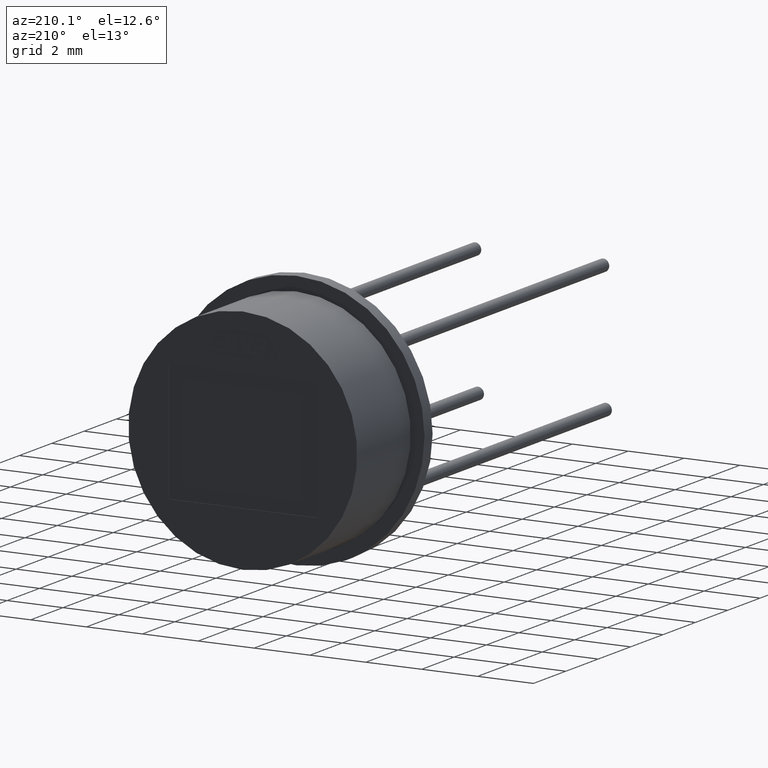
[diagram: clean part render]
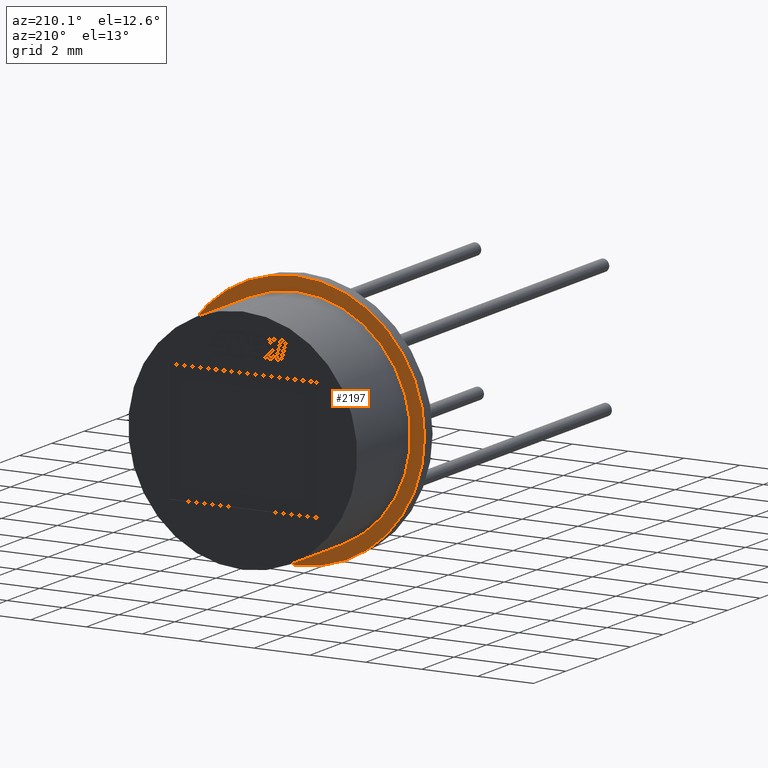
[diagram: same view with one face highlighted and labeled with its STEP entity id]
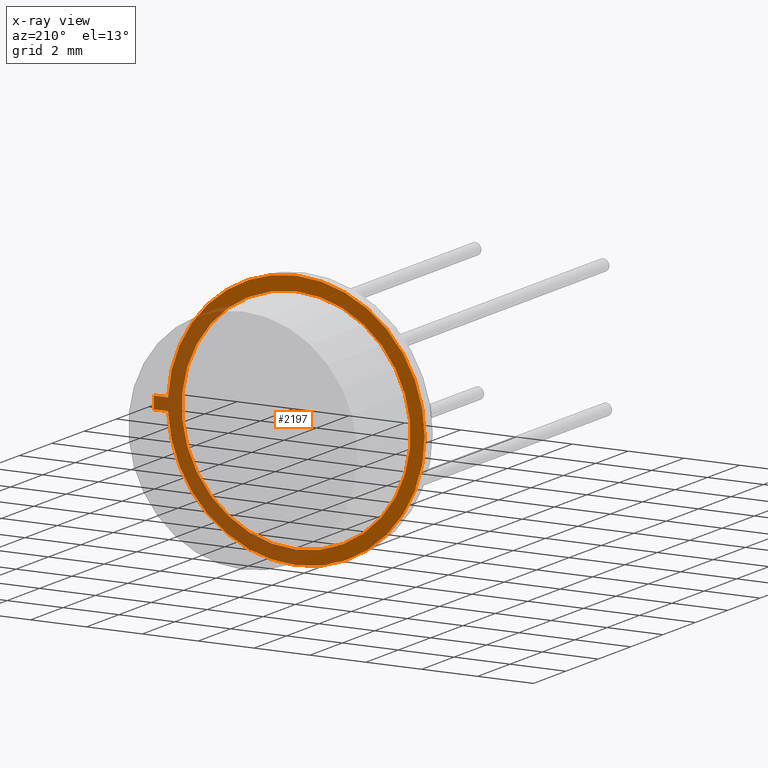
[diagram: x-ray of the same camera — body ghosted, the highlighted face saturated]
A machine part, auxiliary view. The second image highlights one B-rep face of the part: STEP entity #2197.
The next image is the same camera in x-ray: the body ghosted, the highlighted face saturated — about 40% of this face is hidden behind the body in this view.
In plain terms, the highlighted planar face has unit normal (0, 1, 0).
Its self-contained STEP definition (entity closure, byte-faithful):
#30 = ORIENTED_EDGE ( 'NONE', *, *, #2285, .T. ) ;
#115 = AXIS2_PLACEMENT_3D ( 'NONE', #604, #1392, #2539 ) ;
#227 = CARTESIAN_POINT ( 'NONE',  ( 4.589796723945217316, 0.5000000000000000000, -0.2186116027610453261 ) ) ;
#261 = LINE ( 'NONE', #3470, #284 ) ;
#284 = VECTOR ( 'NONE', #2256, 1000.000000000000000 ) ;
#355 = VERTEX_POINT ( 'NONE', #227 ) ;
#375 = ORIENTED_EDGE ( 'NONE', *, *, #1373, .F. ) ;
#412 = AXIS2_PLACEMENT_3D ( 'NONE', #2814, #1417, #2509 ) ;
#578 = CIRCLE ( 'NONE', #1010, 4.594999999999999751 ) ;
#604 = CARTESIAN_POINT ( 'NONE',  ( 0.000000000000000000, 0.5000000000000000000, 0.000000000000000000 ) ) ;
#609 = CARTESIAN_POINT ( 'NONE',  ( 0.000000000000000000, 0.5000000000000000000, 0.000000000000000000 ) ) ;
#663 = VERTEX_POINT ( 'NONE', #3144 ) ;
#695 = ORIENTED_EDGE ( 'NONE', *, *, #1141, .T. ) ;
#774 = ORIENTED_EDGE ( 'NONE', *, *, #856, .F. ) ;
#825 = CARTESIAN_POINT ( 'NONE',  ( 5.089742443134301020, 0.5000000000000000000, 0.2197482780173113659 ) ) ;
#826 = CARTESIAN_POINT ( 'NONE',  ( 0.000000000000000000, 0.5000000000000000000, -4.099999999999999645 ) ) ;
#843 = CARTESIAN_POINT ( 'NONE',  ( 0.000000000000000000, 0.5000000000000000000, 0.000000000000000000 ) ) ;
#848 = AXIS2_PLACEMENT_3D ( 'NONE', #609, #1768, #2043 ) ;
#856 = EDGE_CURVE ( 'NONE', #1858, #2497, #2253, .T. ) ;
#913 = DIRECTION ( 'NONE',  ( 0.000000000000000000, 1.000000000000000000, 0.000000000000000000 ) ) ;
#991 = CARTESIAN_POINT ( 'NONE',  ( 4.589742443134301908, 0.5000000000000000000, 0.2197482780173113659 ) ) ;
#1010 = AXIS2_PLACEMENT_3D ( 'NONE', #3126, #3725, #3180 ) ;
#1138 = ORIENTED_EDGE ( 'NONE', *, *, #1200, .F. ) ;
#1141 = EDGE_CURVE ( 'NONE', #1557, #2858, #1693, .T. ) ;
#1152 = CIRCLE ( 'NONE', #3271, 4.594999999999999751 ) ;
#1200 = EDGE_CURVE ( 'NONE', #2497, #1858, #2970, .T. ) ;
#1373 = EDGE_CURVE ( 'NONE', #355, #2858, #2731, .T. ) ;
#1392 = DIRECTION ( 'NONE',  ( 0.000000000000000000, 1.000000000000000000, 0.000000000000000000 ) ) ;
#1401 = VECTOR ( 'NONE', #2843, 1000.000000000000000 ) ;
#1417 = DIRECTION ( 'NONE',  ( 0.000000000000000000, 1.000000000000000000, 0.000000000000000000 ) ) ;
#1480 = ORIENTED_EDGE ( 'NONE', *, *, #1488, .T. ) ;
#1481 = EDGE_CURVE ( 'NONE', #1557, #1850, #261, .T. ) ;
#1483 = EDGE_LOOP ( 'NONE', ( #375, #1598, #30, #1480, #2498, #695 ) ) ;
#1488 = EDGE_CURVE ( 'NONE', #2020, #1850, #578, .T. ) ;
#1539 = EDGE_LOOP ( 'NONE', ( #1138, #774 ) ) ;
#1557 = VERTEX_POINT ( 'NONE', #3705 ) ;
#1598 = ORIENTED_EDGE ( 'NONE', *, *, #2816, .T. ) ;
#1648 = CARTESIAN_POINT ( 'NONE',  ( 5.627252042082088222E-16, 0.5000000000000000000, 4.594999999999999751 ) ) ;
#1693 = LINE ( 'NONE', #825, #1401 ) ;
#1768 = DIRECTION ( 'NONE',  ( 0.000000000000000000, 1.000000000000000000, 0.000000000000000000 ) ) ;
#1850 = VERTEX_POINT ( 'NONE', #991 ) ;
#1858 = VERTEX_POINT ( 'NONE', #2691 ) ;
#2020 = VERTEX_POINT ( 'NONE', #1648 ) ;
#2043 = DIRECTION ( 'NONE',  ( 0.000000000000000000, 0.000000000000000000, 1.000000000000000000 ) ) ;
#2084 = DIRECTION ( 'NONE',  ( 0.000000000000000000, 0.000000000000000000, 1.000000000000000000 ) ) ;
#2099 = VECTOR ( 'NONE', #3600, 1000.000000000000114 ) ;
#2197 = ADVANCED_FACE ( 'NONE', ( #2234, #2546 ), #3157, .T. ) ;
#2234 = FACE_BOUND ( 'NONE', #1539, .T. ) ;
#2253 = CIRCLE ( 'NONE', #848, 4.099999999999999645 ) ;
#2256 = DIRECTION ( 'NONE',  ( -1.000000000000000000, 0.000000000000000000, 0.000000000000000000 ) ) ;
#2285 = EDGE_CURVE ( 'NONE', #663, #2020, #3449, .T. ) ;
#2399 = DIRECTION ( 'NONE',  ( 0.000000000000000000, 1.000000000000000000, 0.000000000000000000 ) ) ;
#2419 = AXIS2_PLACEMENT_3D ( 'NONE', #3516, #913, #2084 ) ;
#2497 = VERTEX_POINT ( 'NONE', #826 ) ;
#2498 = ORIENTED_EDGE ( 'NONE', *, *, #1481, .F. ) ;
#2509 = DIRECTION ( 'NONE',  ( 0.000000000000000000, -0.000000000000000000, 1.000000000000000000 ) ) ;
#2539 = DIRECTION ( 'NONE',  ( 0.000000000000000000, 0.000000000000000000, 1.000000000000000000 ) ) ;
#2546 = FACE_OUTER_BOUND ( 'NONE', #1483, .T. ) ;
#2691 = CARTESIAN_POINT ( 'NONE',  ( 5.021051876504147385E-16, 0.5000000000000000000, 4.099999999999999645 ) ) ;
#2731 = LINE ( 'NONE', #3031, #2099 ) ;
#2814 = CARTESIAN_POINT ( 'NONE',  ( 0.000000000000000000, 0.5000000000000000000, 0.000000000000000000 ) ) ;
#2816 = EDGE_CURVE ( 'NONE', #355, #663, #1152, .T. ) ;
#2843 = DIRECTION ( 'NONE',  ( 0.000000000000000000, 0.000000000000000000, -1.000000000000000000 ) ) ;
#2858 = VERTEX_POINT ( 'NONE', #3166 ) ;
#2970 = CIRCLE ( 'NONE', #115, 4.099999999999999645 ) ;
#3031 = CARTESIAN_POINT ( 'NONE',  ( 4.589796723945217316, 0.5000000000000000000, -0.2186116027610452706 ) ) ;
#3126 = CARTESIAN_POINT ( 'NONE',  ( 0.000000000000000000, 0.5000000000000000000, 0.000000000000000000 ) ) ;
#3144 = CARTESIAN_POINT ( 'NONE',  ( 0.000000000000000000, 0.5000000000000000000, -4.594999999999999751 ) ) ;
#3157 = PLANE ( 'NONE',  #412 ) ;
#3166 = CARTESIAN_POINT ( 'NONE',  ( 5.089742443134301020, 0.5000000000000000000, -0.2197482780173113659 ) ) ;
#3180 = DIRECTION ( 'NONE',  ( 0.000000000000000000, 0.000000000000000000, 1.000000000000000000 ) ) ;
#3271 = AXIS2_PLACEMENT_3D ( 'NONE', #843, #2399, #3752 ) ;
#3449 = CIRCLE ( 'NONE', #2419, 4.594999999999999751 ) ;
#3470 = CARTESIAN_POINT ( 'NONE',  ( 5.089742443134301020, 0.5000000000000000000, 0.2197482780173113659 ) ) ;
#3516 = CARTESIAN_POINT ( 'NONE',  ( 0.000000000000000000, 0.5000000000000000000, 0.000000000000000000 ) ) ;
#3600 = DIRECTION ( 'NONE',  ( 0.9999974153875927918, 0.000000000000000000, -0.002273591461578715073 ) ) ;
#3705 = CARTESIAN_POINT ( 'NONE',  ( 5.089742443134301020, 0.5000000000000000000, 0.2197482780173113659 ) ) ;
#3725 = DIRECTION ( 'NONE',  ( 0.000000000000000000, 1.000000000000000000, 0.000000000000000000 ) ) ;
#3752 = DIRECTION ( 'NONE',  ( 0.000000000000000000, 0.000000000000000000, 1.000000000000000000 ) ) ;